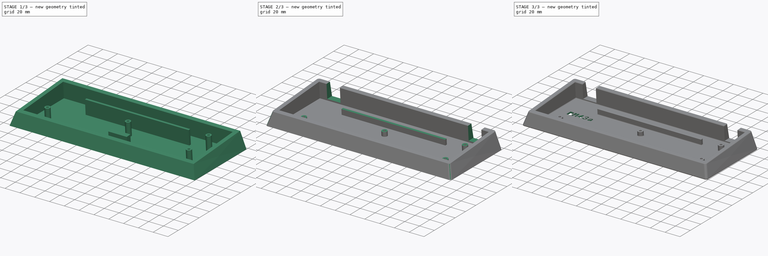
[diagram: build sequence overview — one tinted view per stage of 3, left to right]
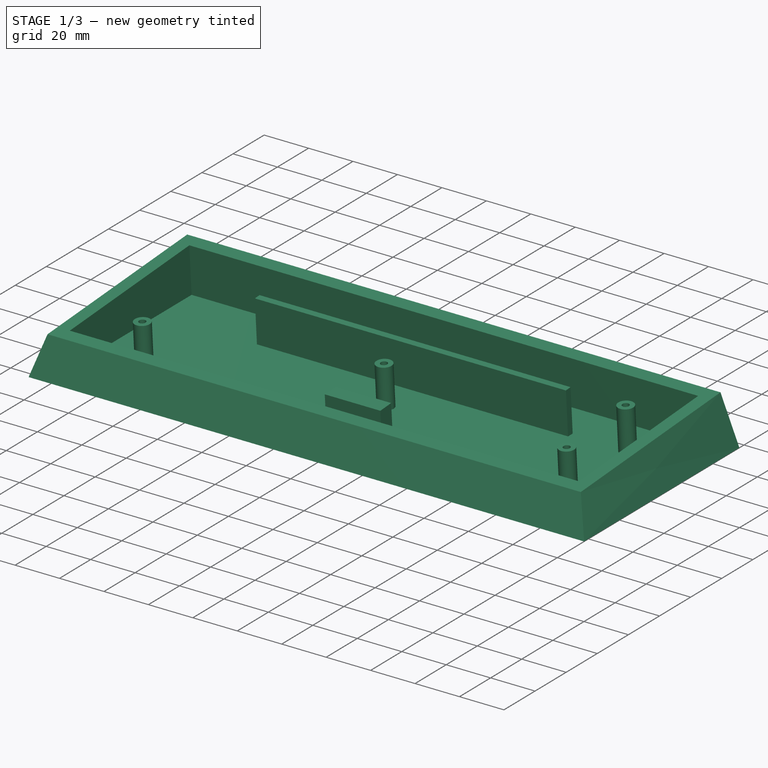
[diagram: stage 1 of 3 — iso view after this stage's code; geometry added in this stage tinted green]
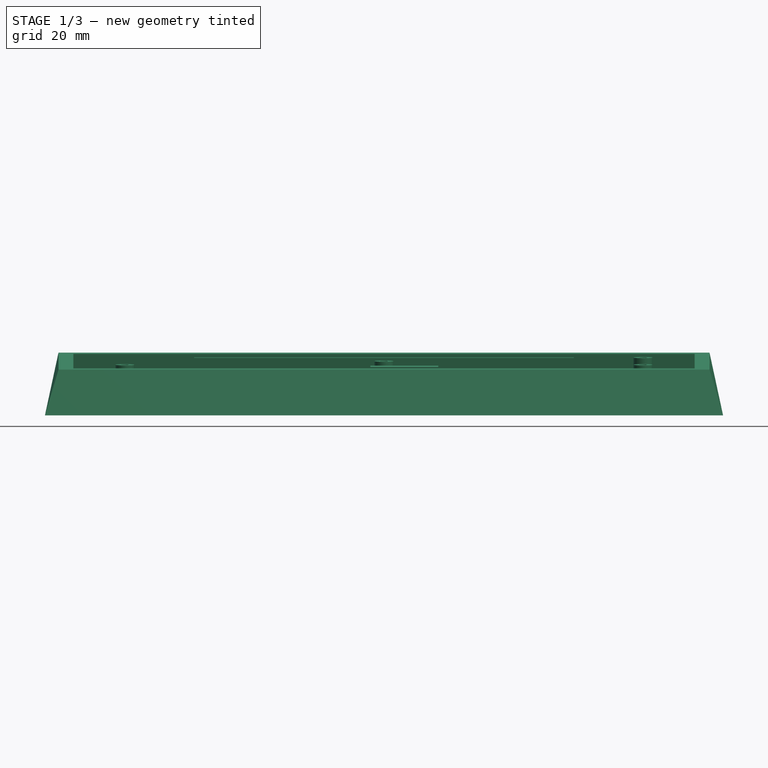
[diagram: stage 1 of 3 — front view after this stage's code; geometry added in this stage tinted green]
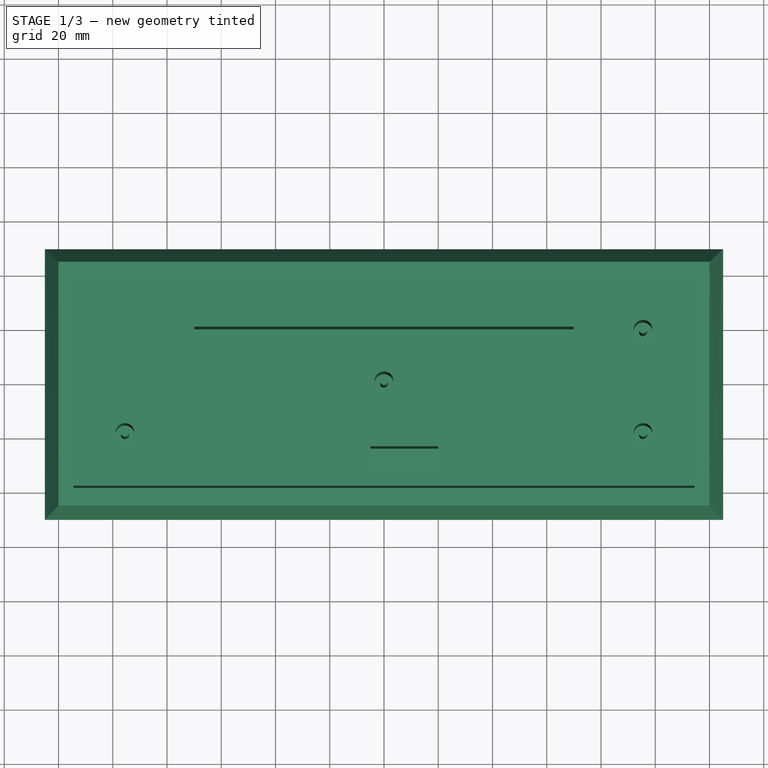
[diagram: stage 1 of 3 — top view after this stage's code; geometry added in this stage tinted green]
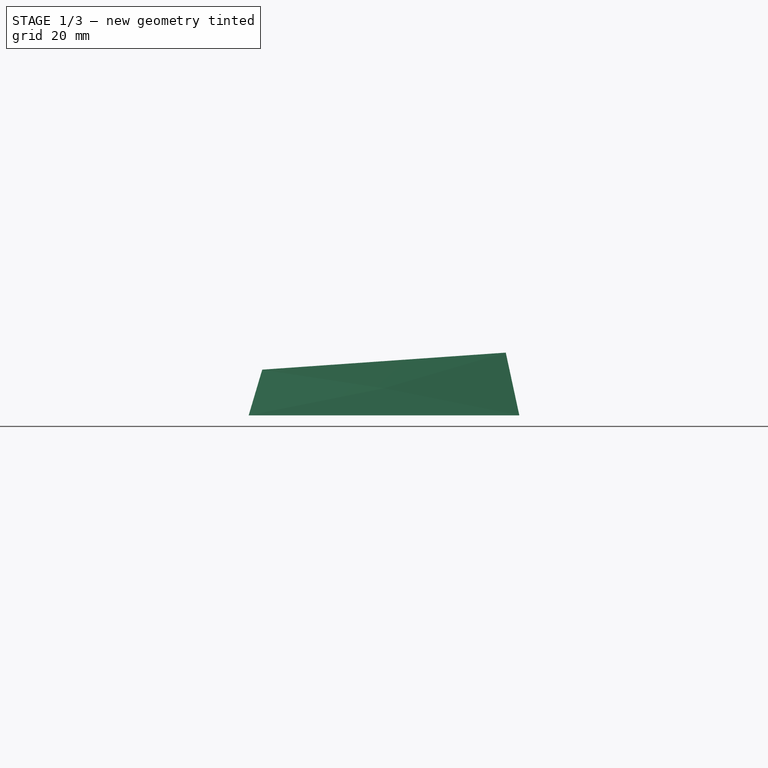
[diagram: stage 1 of 3 — right view after this stage's code; geometry added in this stage tinted green]
FCSTD DOCUMENT  (FreeCAD 0.20R)
Label: bm43a-test(2)
License: All rights reserved
LicenseURL: http://en.wikipedia.org/wiki/All_rights_reserved
objects: Sketcher::SketchObject×6, PartDesign::Pocket×4, PartDesign::Fillet×2, PartDesign::AdditiveLoft×1, PartDesign::Body×1
note: 21 computed .brp shape members not serialized (recipe doc carries the construction recipe); baked Part::Feature solids carry a one-line shape summary decoded from their .brp

FEATURE [Sketcher::SketchObject] Sketch
  FullyConstrained = true
  MapMode = 5
  Placement = pos=(0,0,20) rot=(1,0,0;0.069813rad)
  sketch-geometry (4):
    g0: LineSegment StartX=-120 StartY=45 StartZ=0 EndX=120 EndY=45 EndZ=0
    g1: LineSegment StartX=120 StartY=45 StartZ=0 EndX=120 EndY=-45 EndZ=0
    g2: LineSegment StartX=120 StartY=-45 StartZ=0 EndX=-120 EndY=-45 EndZ=0
    g3: LineSegment StartX=-120 StartY=-45 StartZ=0 EndX=-120 EndY=45 EndZ=0
  constraints (11):
    c: Coincident(g0,g1)
    c: Coincident(g1,g2)
    c: Coincident(g2,g3)
    c: Coincident(g3,g0)
    c: Horizontal(g0)
    c: Horizontal(g2)
    c: Vertical(g1)
    c: Vertical(g3)
    c: Symmetric(g0,g1,g-1)
    c: DistanceX(g0,g0) = 240
    c: DistanceY(g1,g1) = 90
FEATURE [Sketcher::SketchObject] Sketch001
  ExternalGeometry = -> [Sketch]
  FullyConstrained = true
  MapMode = 5
  Support = -> [XY_Plane]
  sketch-geometry (4):
    g0: LineSegment StartX=-125 StartY=49.8904 StartZ=0 EndX=125 EndY=49.8904 EndZ=0
    g1: LineSegment StartX=125 StartY=49.8904 StartZ=0 EndX=125 EndY=-49.8904 EndZ=0
    g2: LineSegment StartX=125 StartY=-49.8904 StartZ=0 EndX=-125 EndY=-49.8904 EndZ=0
    g3: LineSegment StartX=-125 StartY=-49.8904 StartZ=0 EndX=-125 EndY=49.8904 EndZ=0
  constraints (11):
    c: Coincident(g0,g1)
    c: Coincident(g1,g2)
    c: Coincident(g2,g3)
    c: Coincident(g3,g0)
    c: Horizontal(g0)
    c: Horizontal(g2)
    c: Vertical(g1)
    c: Vertical(g3)
    c: Symmetric(g0,g2,g-1)
    c: DistanceY(g-4,g0) = 5
    c: DistanceX(g-4,g0) = 5
FEATURE [PartDesign::AdditiveLoft] AdditiveLoft
  Closed = true
  Profile = -> Sketch001
  Ruled = true
  Sections = -> [Sketch]
FEATURE [Sketcher::SketchObject] Sketch002
  ExternalGeometry = -> [AdditiveLoft]
  FullyConstrained = true
  MapMode = 5
  Placement = pos=(0,-1.39173,19.9027) rot=(1,0,0;0.069813rad)
  Support = -> [AdditiveLoft]
  sketch-geometry (31):
    g0: LineSegment StartX=-120 StartY=46.3951 StartZ=0 EndX=120 EndY=-43.6049 EndZ=0
    g1: LineSegment StartX=120 StartY=46.3951 StartZ=0 EndX=-120 EndY=-43.6049 EndZ=0
    g2: GeomPoint X=-4.4e-15 Y=1.39513 Z=0
    g3: LineSegment StartX=-114.5 StartY=39.8951 StartZ=0 EndX=114.5 EndY=39.8951 EndZ=0
    g4: LineSegment StartX=114.5 StartY=39.8951 StartZ=0 EndX=114.5 EndY=-37.1049 EndZ=0
    g5: LineSegment StartX=114.5 StartY=-37.1049 StartZ=0 EndX=-114.5 EndY=-37.1049 EndZ=0
    g6: LineSegment StartX=-114.5 StartY=-37.1049 StartZ=0 EndX=-114.5 EndY=39.8951 EndZ=0
    g7: LineSegment StartX=-95.5 StartY=1.39513 StartZ=0 EndX=95.5 EndY=1.39513 EndZ=0
    g8: LineSegment StartX=-95.5 StartY=39.8951 StartZ=0 EndX=-95.5 EndY=-37.1049 EndZ=0
    g9: LineSegment StartX=95.5 StartY=39.8951 StartZ=0 EndX=95.5 EndY=-37.1049 EndZ=0
    g10: GeomPoint X=-95.5 Y=-17.6049 Z=0
    g11: GeomPoint X=95.5 Y=-17.6049 Z=0
    g12: GeomPoint X=95.5 Y=20.3951 Z=0
    g13: Circle CenterX=-4.4e-15 CenterY=1.39513 CenterZ=0 NormalX=0 NormalY=0 NormalZ=1 AngleXU=0 Radius=3.5
    g14: Circle CenterX=-95.5 CenterY=-17.6049 CenterZ=0 NormalX=0 NormalY=0 NormalZ=1 AngleXU=0 Radius=3.5
    g15: Circle CenterX=95.5 CenterY=-17.6049 CenterZ=0 NormalX=0 NormalY=0 NormalZ=1 AngleXU=0 Radius=3.5
    g16: Circle CenterX=95.5 CenterY=20.3951 CenterZ=0 NormalX=0 NormalY=0 NormalZ=1 AngleXU=0 Radius=3.5
    g17: Circle CenterX=-95.5 CenterY=-17.6049 CenterZ=0 NormalX=0 NormalY=0 NormalZ=1 AngleXU=0 Radius=1.5
    g18: Circle CenterX=-4.4e-15 CenterY=1.39513 CenterZ=0 NormalX=0 NormalY=0 NormalZ=1 AngleXU=0 Radius=1.5
    g19: Circle CenterX=95.5 CenterY=20.3951 CenterZ=0 NormalX=0 NormalY=0 NormalZ=1 AngleXU=0 Radius=1.5
    g20: Circle CenterX=95.5 CenterY=-17.6049 CenterZ=0 NormalX=0 NormalY=0 NormalZ=1 AngleXU=0 Radius=1.5
    g21: LineSegment StartX=95.5 StartY=21.3951 StartZ=0 EndX=-95.5 EndY=21.3951 EndZ=0
    g22: LineSegment StartX=-70 StartY=21.3951 StartZ=0 EndX=70 EndY=21.3951 EndZ=0
    g23: LineSegment StartX=70 StartY=21.3951 StartZ=0 EndX=70 EndY=18.3951 EndZ=0
    g24: LineSegment StartX=70 StartY=18.3951 StartZ=0 EndX=-70 EndY=18.3951 EndZ=0
    g25: LineSegment StartX=-70 StartY=18.3951 StartZ=0 EndX=-70 EndY=21.3951 EndZ=0
    g26: LineSegment StartX=-4.4e-15 StartY=39.8951 StartZ=0 EndX=-4.4e-15 EndY=-37.1049 EndZ=0
    g27: LineSegment StartX=-5 StartY=-22.6049 StartZ=0 EndX=20 EndY=-22.6049 EndZ=0
    g28: LineSegment StartX=20 StartY=-22.6049 StartZ=0 EndX=20 EndY=-29.6049 EndZ=0
    g29: LineSegment StartX=20 StartY=-29.6049 StartZ=0 EndX=-5 EndY=-29.6049 EndZ=0
    g30: LineSegment StartX=-5 StartY=-29.6049 StartZ=0 EndX=-5 EndY=-22.6049 EndZ=0
  constraints (80):
    c: Coincident(g0,g-3)
    c: Coincident(g0,g-4)
    c: Coincident(g1,g-3)
    c: Coincident(g1,g-4)
    c: PointOnObject(g2,g0)
    c: PointOnObject(g2,g1)
    c: Coincident(g3,g4)
    c: Coincident(g4,g5)
    c: Coincident(g5,g6)
    c: Coincident(g6,g3)
    c: Horizontal(g3)
    c: Horizontal(g5)
    c: Vertical(g4)
    c: Vertical(g6)
    c: Symmetric(g4,g3,g2)
    c: DistanceX(g3,g3) = 229
    c: DistanceY(g6,g6) = 77
    c: Horizontal(g7)
    c: Symmetric(g7,g7,g2)
    c: DistanceX(g7,g7) = 191
    c: PointOnObject(g8,g3)
    c: PointOnObject(g8,g5)
    c: Vertical(g8)
    c: PointOnObject(g7,g8)
    c: PointOnObject(g9,g3)
    c: PointOnObject(g9,g5)
    c: Vertical(g9)
    c: PointOnObject(g7,g9)
    c: Coincident(g13,g2)
    c: Coincident(g14,g10)
    c: Coincident(g15,g11)
    c: Coincident(g16,g12)
    c: Equal(g14,g13)
    c: Equal(g13,g16)
    c: Equal(g16,g15)
    c: Diameter(g14) = 7
    c: Coincident(g17,g14)
    c: Coincident(g18,g13)
    c: Coincident(g19,g16)
    c: Coincident(g20,g15)
    c: Equal(g17,g18)
    c: Equal(g18,g19)
    c: Equal(g19,g20)
    c: Diameter(g17) = 3
    c: PointOnObject(g21,g9)
    c: PointOnObject(g21,g8)
    c: Horizontal(g21)
    c: DistanceY(g7,g21) = 20
    c: Coincident(g22,g23)
    c: Coincident(g23,g24)
    c: Coincident(g24,g25)
    c: Coincident(g25,g22)
    c: Horizontal(g22)
    c: Horizontal(g24)
    c: Vertical(g23)
    c: Vertical(g25)
    c: PointOnObject(g22,g21)
    c: PointOnObject(g26,g3)
    c: PointOnObject(g26,g5)
    c: PointOnObject(g13,g26)
    c: Symmetric(g22,g22,g26)
    c: DistanceX(g24,g24) = 140
    c: DistanceY(g25,g25) = 3
    c: Coincident(g27,g28)
    c: Coincident(g28,g29)
    c: Coincident(g29,g30)
    c: Coincident(g30,g27)
    c: Horizontal(g27)
    c: Horizontal(g29)
    c: Vertical(g28)
    c: Vertical(g30)
    c: DistanceY(g27,g13) = 24
    c: DistanceY(g28,g28) = 7
    c: DistanceX(g27,g13) = 5
    c: DistanceX(g13,g27) = 20
    c: PointOnObject(g16,g9)
    c: PointOnObject(g14,g8)
    c: DistanceY(g14,g7) = 19
    c: DistanceY(g7,g16) = 19
    c: Symmetric(g16,g15,g7)
FEATURE [PartDesign::Pocket] Pocket
  BaseFeature = -> AdditiveLoft
  Direction = (0,0.0697565,-0.997564)
  Length = 0
  Length2 = 5
  Offset = -2
  Profile = -> Sketch002
  ReferenceAxis = -> Sketch002 [N_Axis]
  Type = 3
  UpToFace = -> AdditiveLoft [Face1]
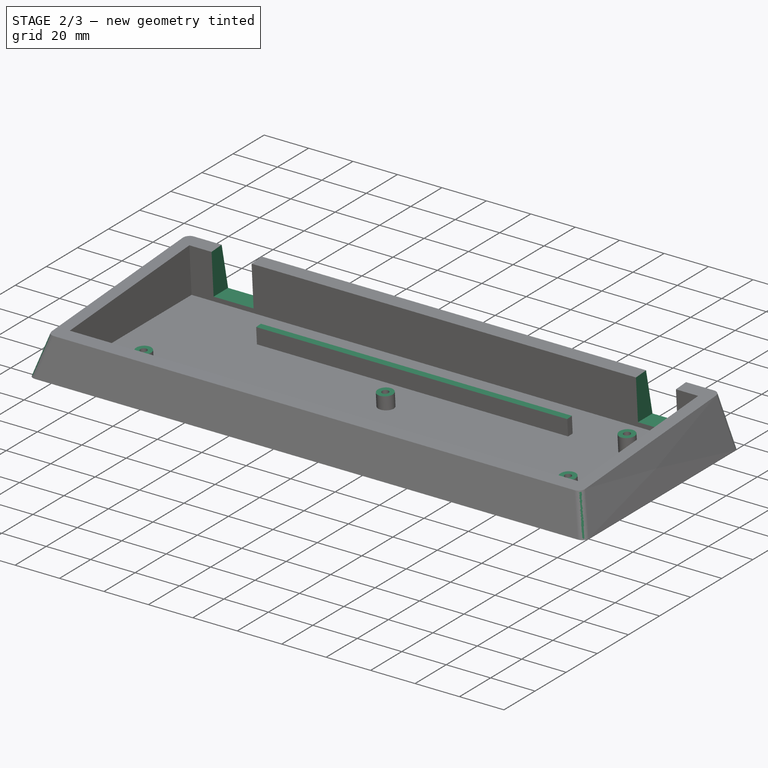
[diagram: stage 2 of 3 — iso view after this stage's code; geometry added in this stage tinted green]
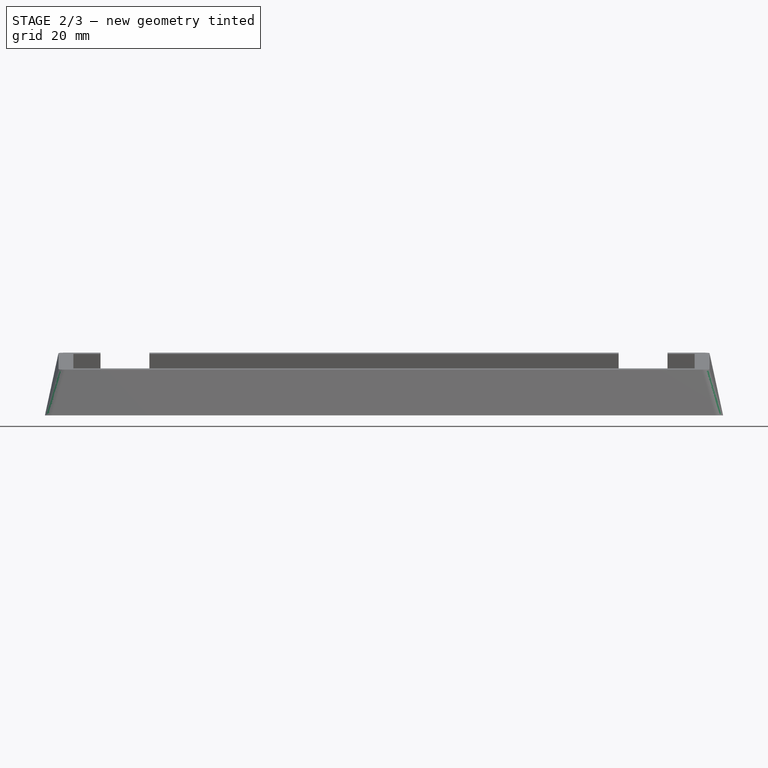
[diagram: stage 2 of 3 — front view after this stage's code; geometry added in this stage tinted green]
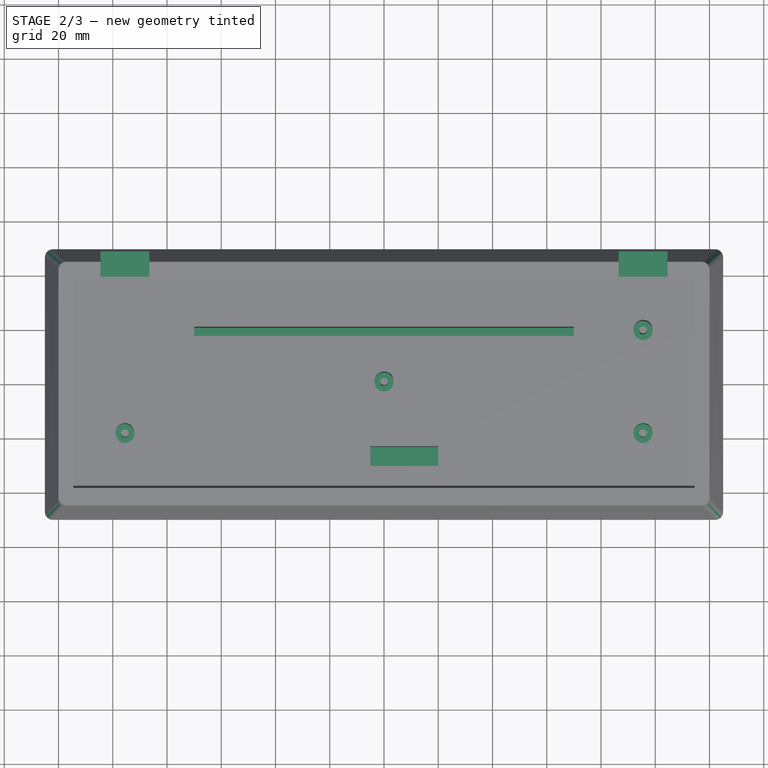
[diagram: stage 2 of 3 — top view after this stage's code; geometry added in this stage tinted green]
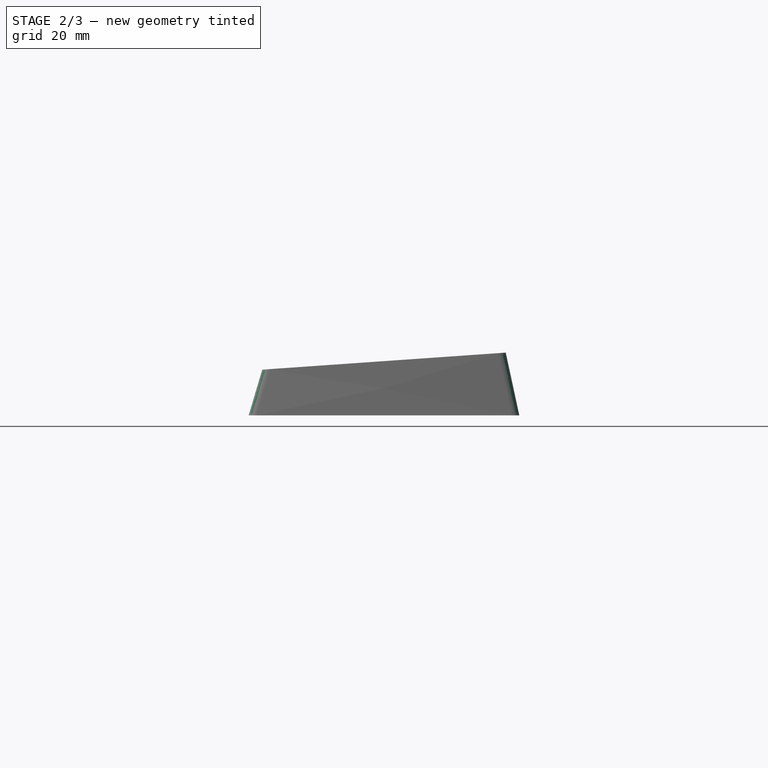
[diagram: stage 2 of 3 — right view after this stage's code; geometry added in this stage tinted green]
FEATURE [Sketcher::SketchObject] Sketch003
  ExternalGeometry = -> [Pocket]
  FullyConstrained = true
  MapMode = 5
  Placement = pos=(0,-1.39173,19.9027) rot=(1,0,0;0.069813rad)
  Support = -> [Pocket]
  sketch-geometry (4):
    g0: LineSegment StartX=-114.5 StartY=39.8951 StartZ=0 EndX=114.5 EndY=39.8951 EndZ=0
    g1: LineSegment StartX=114.5 StartY=39.8951 StartZ=0 EndX=114.5 EndY=-37.1049 EndZ=0
    g2: LineSegment StartX=114.5 StartY=-37.1049 StartZ=0 EndX=-114.5 EndY=-37.1049 EndZ=0
    g3: LineSegment StartX=-114.5 StartY=-37.1049 StartZ=0 EndX=-114.5 EndY=39.8951 EndZ=0
  constraints (10):
    c: Coincident(g0,g1)
    c: Coincident(g1,g2)
    c: Coincident(g2,g3)
    c: Coincident(g3,g0)
    c: Horizontal(g0)
    c: Horizontal(g2)
    c: Vertical(g1)
    c: Vertical(g3)
    c: Coincident(g0,g-4)
    c: Coincident(g1,g-3)
FEATURE [PartDesign::Pocket] Pocket001
  BaseFeature = -> Pocket
  Direction = (0,0.0697565,-0.997564)
  Length = 12
  Length2 = 5
  Profile = -> Sketch003
  ReferenceAxis = -> Sketch003 [N_Axis]
  Type = 0
FEATURE [Sketcher::SketchObject] Sketch004
  ExternalGeometry = -> [Pocket001]
  FullyConstrained = true
  MapMode = 5
  Placement = pos=(0,-1.39173,19.9027) rot=(1,0,0;0.069813rad)
  Support = -> [Pocket001]
  sketch-geometry (8):
    g0: LineSegment StartX=-104.5 StartY=39.8951 StartZ=0 EndX=-86.5 EndY=39.8951 EndZ=0
    g1: LineSegment StartX=-86.5 StartY=39.8951 StartZ=0 EndX=-86.5 EndY=49.7689 EndZ=0
    g2: LineSegment StartX=-86.5 StartY=49.7689 StartZ=0 EndX=-104.5 EndY=49.7689 EndZ=0
    g3: LineSegment StartX=-104.5 StartY=49.7689 StartZ=0 EndX=-104.5 EndY=39.8951 EndZ=0
    g4: LineSegment StartX=104.5 StartY=39.8951 StartZ=0 EndX=86.5 EndY=39.8951 EndZ=0
    g5: LineSegment StartX=86.5 StartY=39.8951 StartZ=0 EndX=86.5 EndY=49.7689 EndZ=0
    g6: LineSegment StartX=86.5 StartY=49.7689 StartZ=0 EndX=104.5 EndY=49.7689 EndZ=0
    g7: LineSegment StartX=104.5 StartY=49.7689 StartZ=0 EndX=104.5 EndY=39.8951 EndZ=0
  constraints (24):
    c: Coincident(g0,g1)
    c: Coincident(g1,g2)
    c: Coincident(g2,g3)
    c: Coincident(g3,g0)
    c: Horizontal(g0)
    c: Horizontal(g2)
    c: Vertical(g1)
    c: Vertical(g3)
    c: PointOnObject(g0,g-4)
    c: PointOnObject(g1,g-3)
    c: DistanceX(g-4,g0) = 10
    c: DistanceX(g-4,g0) = 28
    c: Coincident(g4,g5)
    c: Coincident(g5,g6)
    c: Coincident(g6,g7)
    c: Coincident(g7,g4)
    c: Horizontal(g4)
    c: Horizontal(g6)
    c: Vertical(g5)
    c: Vertical(g7)
    c: PointOnObject(g4,g-4)
    c: PointOnObject(g5,g-3)
    c: DistanceX(g4,g-4) = 10
    c: DistanceX(g4,g-4) = 28
FEATURE [PartDesign::Pocket] Pocket002
  BaseFeature = -> Pocket001
  Direction = (0,0.0697565,-0.997564)
  Length = 0
  Length2 = 5
  Offset = -4
  Profile = -> Sketch004
  ReferenceAxis = -> Sketch004 [N_Axis]
  Type = 3
  UpToFace = -> Pocket001 [Face1]
FEATURE [PartDesign::Fillet] Fillet
  Base = -> Pocket002 [Edge18,Edge16,Edge15,Edge5]
  BaseFeature = -> Pocket002
  Radius = 3
  SupportTransform = false
  UseAllEdges = false
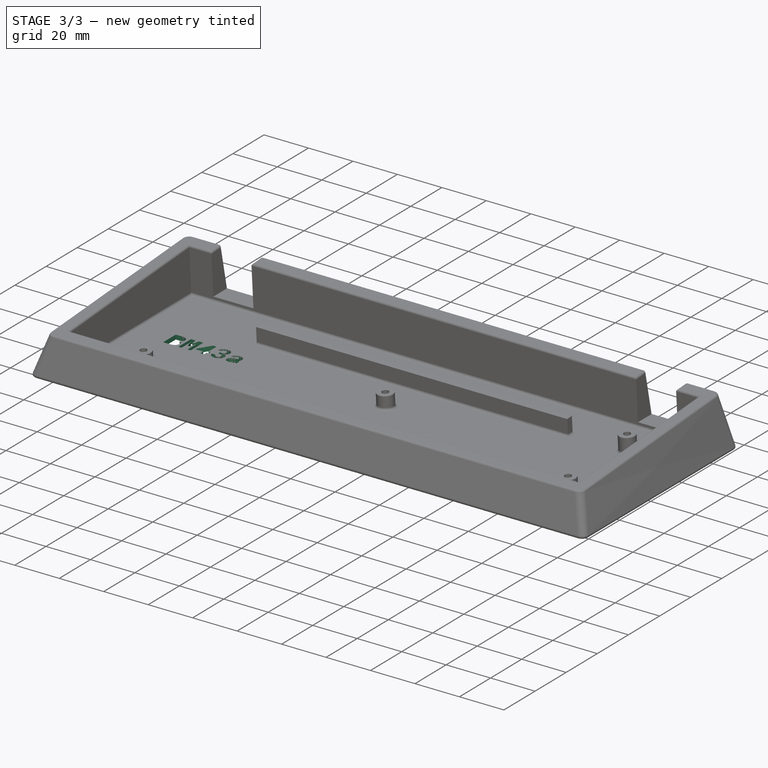
[diagram: stage 3 of 3 — iso view after this stage's code; geometry added in this stage tinted green]
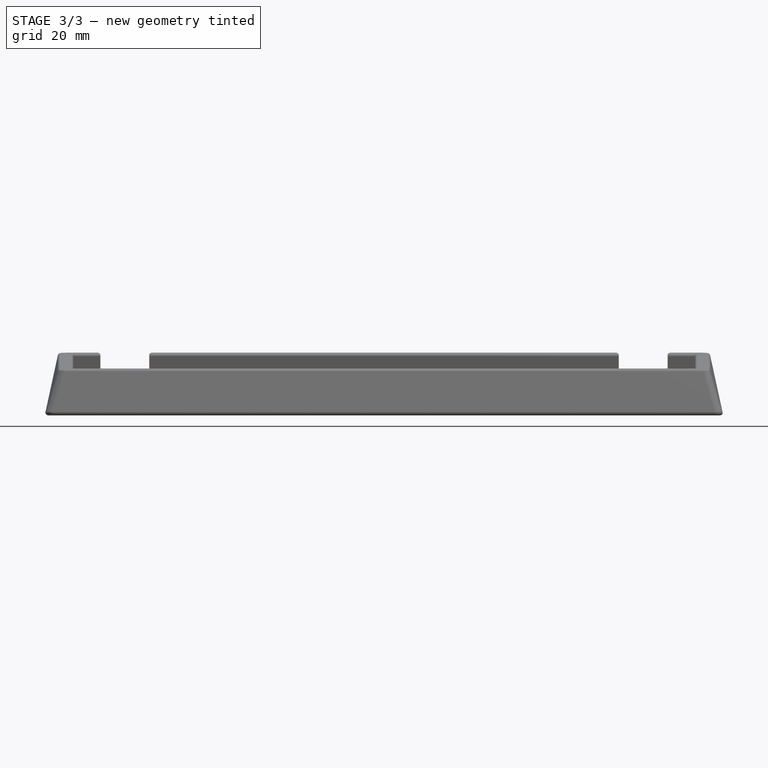
[diagram: stage 3 of 3 — front view after this stage's code; geometry added in this stage tinted green]
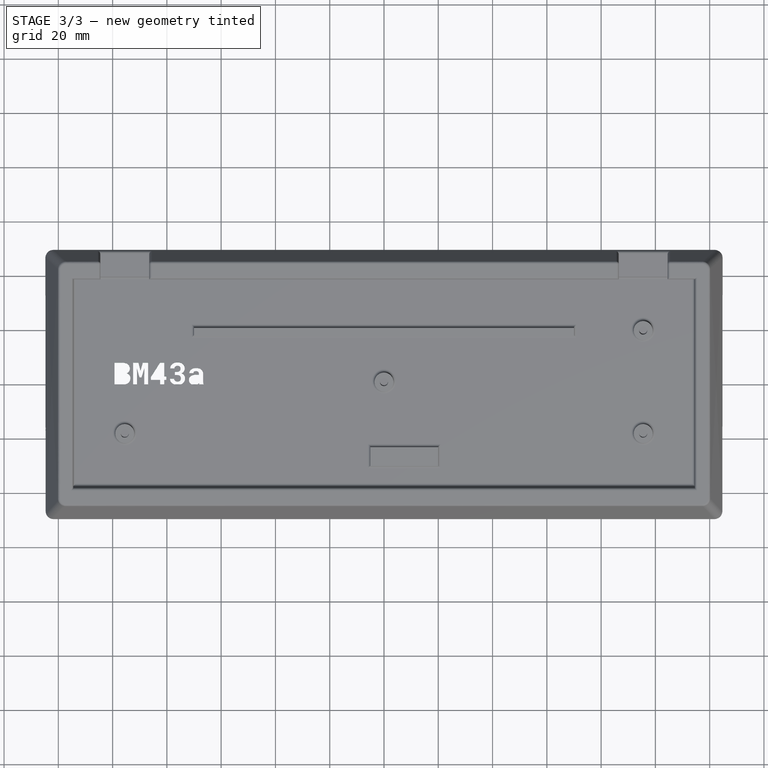
[diagram: stage 3 of 3 — top view after this stage's code; geometry added in this stage tinted green]
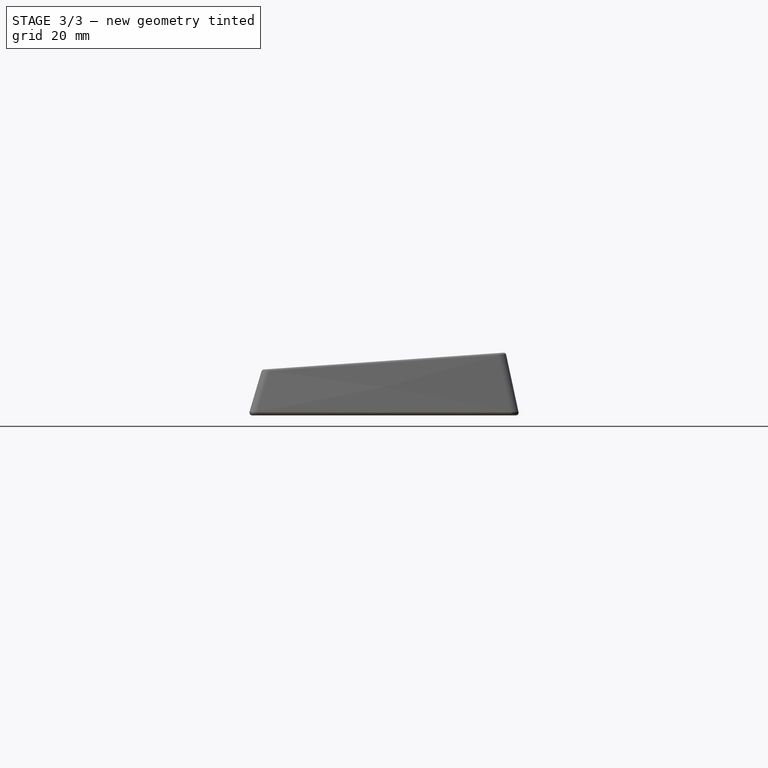
[diagram: stage 3 of 3 — right view after this stage's code; geometry added in this stage tinted green]
FEATURE [PartDesign::Fillet] Fillet001
  Base = -> Fillet [Face1,Face10,Face14,Face28,Edge18,Edge17,Edge14,Edge11,Edge12,Edge19]
  BaseFeature = -> Fillet
  Radius = 1
  SupportTransform = false
  UseAllEdges = false
FEATURE [Sketcher::SketchObject] Sketch005
  FullyConstrained = false
  Placement = pos=(-100,0,2) rot=(0,0,1;0rad)
  Support = -> [Fillet001]
  sketch-geometry (137):
    g0: LineSegment StartX=0.718252 StartY=0 StartZ=0 EndX=3.66531 EndY=0 EndZ=0
    g1: BSplineCurve PolesCount=3 KnotsCount=2 Degree=2 IsPeriodic=0
    g2: BSplineCurve PolesCount=3 KnotsCount=2 Degree=2 IsPeriodic=0
    g3: BSplineCurve PolesCount=3 KnotsCount=2 Degree=2 IsPeriodic=0
    g4: BSplineCurve PolesCount=3 KnotsCount=2 Degree=2 IsPeriodic=0
    g5: BSplineCurve PolesCount=3 KnotsCount=2 Degree=2 IsPeriodic=0
    g6: BSplineCurve PolesCount=3 KnotsCount=2 Degree=2 IsPeriodic=0
    g7: BSplineCurve PolesCount=3 KnotsCount=2 Degree=2 IsPeriodic=0
    g8: BSplineCurve PolesCount=3 KnotsCount=2 Degree=2 IsPeriodic=0
    g9: LineSegment StartX=5.18327 StartY=4.17623 StartZ=0 EndX=5.18327 EndY=4.18364 EndZ=0
    g10: BSplineCurve PolesCount=3 KnotsCount=2 Degree=2 IsPeriodic=0
    g11: BSplineCurve PolesCount=3 KnotsCount=2 Degree=2 IsPeriodic=0
    g12: BSplineCurve PolesCount=3 KnotsCount=2 Degree=2 IsPeriodic=0
    g13: BSplineCurve PolesCount=3 KnotsCount=2 Degree=2 IsPeriodic=0
    g14: BSplineCurve PolesCount=3 KnotsCount=2 Degree=2 IsPeriodic=0
    g15: BSplineCurve PolesCount=3 KnotsCount=2 Degree=2 IsPeriodic=0
    g16: BSplineCurve PolesCount=3 KnotsCount=2 Degree=2 IsPeriodic=0
    g17: BSplineCurve PolesCount=3 KnotsCount=2 Degree=2 IsPeriodic=0
    g18: LineSegment StartX=3.43206 StartY=8.08589 StartZ=0 EndX=0.718252 EndY=8.08589 EndZ=0
    g19: LineSegment StartX=0.718252 StartY=8.08589 StartZ=0 EndX=0.718252 EndY=0 EndZ=0
    g20: LineSegment StartX=9.51499 StartY=8.08589 StartZ=0 EndX=7.57867 EndY=8.08589 EndZ=0
    g21: LineSegment StartX=7.57867 StartY=8.08589 StartZ=0 EndX=7.57867 EndY=0 EndZ=0
    g22: LineSegment StartX=7.57867 StartY=0 StartZ=0 EndX=9.01148 EndY=0 EndZ=0
    g23: LineSegment StartX=9.01148 StartY=0 StartZ=0 EndX=9.01148 EndY=2.39541 EndZ=0
    g24: LineSegment StartX=9.01148 StartY=2.39541 StartZ=0 EndX=8.94484 EndY=6.0274 EndZ=0
    g25: LineSegment StartX=8.94484 StartY=6.0274 StartZ=0 EndX=9.89263 EndY=2.66568 EndZ=0
    g26: LineSegment StartX=9.89263 StartY=2.66568 StartZ=0 EndX=10.6664 EndY=2.66568 EndZ=0
    g27: LineSegment StartX=10.6664 StartY=2.66568 StartZ=0 EndX=11.7253 EndY=6.17549 EndZ=0
    g28: LineSegment StartX=11.7253 StartY=6.17549 StartZ=0 EndX=11.6586 EndY=2.39541 EndZ=0
    g29: LineSegment StartX=11.6586 StartY=2.39541 StartZ=0 EndX=11.6586 EndY=0 EndZ=0
    g30: LineSegment StartX=11.6586 StartY=0 StartZ=0 EndX=13.0914 EndY=0 EndZ=0
    g31: LineSegment StartX=13.0914 StartY=0 StartZ=0 EndX=13.0914 EndY=8.08589 EndZ=0
    g32: LineSegment StartX=13.0914 StartY=8.08589 StartZ=0 EndX=11.1551 EndY=8.08589 EndZ=0
    g33: LineSegment StartX=11.1551 StartY=8.08589 StartZ=0 EndX=10.2814 EndY=5.04998 EndZ=0
    g34: LineSegment StartX=10.2814 StartY=5.04998 StartZ=0 EndX=9.51499 EndY=8.08589 EndZ=0
    g35: LineSegment StartX=19.0374 StartY=3.00629 StartZ=0 EndX=19.0374 EndY=8.08589 EndZ=0
    g36: LineSegment StartX=19.0374 StartY=8.08589 StartZ=0 EndX=17.4713 EndY=8.08589 EndZ=0
    g37: LineSegment StartX=17.4713 StartY=8.08589 StartZ=0 EndX=14.0726 EndY=2.72121 EndZ=0
    g38: LineSegment StartX=14.0726 StartY=2.72121 StartZ=0 EndX=14.1318 EndY=1.75491 EndZ=0
    g39: LineSegment StartX=14.1318 StartY=1.75491 StartZ=0 EndX=17.4935 EndY=1.75491 EndZ=0
    g40: LineSegment StartX=17.4935 StartY=1.75491 StartZ=0 EndX=17.4935 EndY=0 EndZ=0
    g41: LineSegment StartX=17.4935 StartY=0 StartZ=0 EndX=19.0374 EndY=0 EndZ=0
    g42: LineSegment StartX=19.0374 StartY=0 StartZ=0 EndX=19.0374 EndY=1.75491 EndZ=0
    g43: LineSegment StartX=19.0374 StartY=1.75491 StartZ=0 EndX=19.9741 EndY=1.75491 EndZ=0
    g44: LineSegment StartX=19.9741 StartY=1.75491 StartZ=0 EndX=19.9741 EndY=3.00629 EndZ=0
    g45: LineSegment StartX=19.9741 StartY=3.00629 StartZ=0 EndX=19.0374 EndY=3.00629 EndZ=0
    g46: LineSegment StartX=22.9545 StartY=4.72047 StartZ=0 EndX=22.9545 EndY=3.52092 EndZ=0
    g47: LineSegment StartX=22.9545 StartY=3.52092 StartZ=0 EndX=23.7912 EndY=3.52092 EndZ=0
    g48: BSplineCurve PolesCount=3 KnotsCount=2 Degree=2 IsPeriodic=0
    g49: BSplineCurve PolesCount=3 KnotsCount=2 Degree=2 IsPeriodic=0
    g50: BSplineCurve PolesCount=3 KnotsCount=2 Degree=2 IsPeriodic=0
    g51: BSplineCurve PolesCount=3 KnotsCount=2 Degree=2 IsPeriodic=0
    g52: BSplineCurve PolesCount=3 KnotsCount=2 Degree=2 IsPeriodic=0
    g53: BSplineCurve PolesCount=3 KnotsCount=2 Degree=2 IsPeriodic=0
    g54: BSplineCurve PolesCount=3 KnotsCount=2 Degree=2 IsPeriodic=0
    g55: BSplineCurve PolesCount=3 KnotsCount=2 Degree=2 IsPeriodic=0
    g56: BSplineCurve PolesCount=3 KnotsCount=2 Degree=2 IsPeriodic=0
    g57: BSplineCurve PolesCount=3 KnotsCount=2 Degree=2 IsPeriodic=0
    g58: BSplineCurve PolesCount=3 KnotsCount=2 Degree=2 IsPeriodic=0
    g59: BSplineCurve PolesCount=3 KnotsCount=2 Degree=2 IsPeriodic=0
    g60: LineSegment StartX=22.6916 StartY=2.19919 StartZ=0 EndX=21.1477 EndY=2.19919 EndZ=0
    g61: BSplineCurve PolesCount=3 KnotsCount=2 Degree=2 IsPeriodic=0
    g62: BSplineCurve PolesCount=3 KnotsCount=2 Degree=2 IsPeriodic=0
    g63: BSplineCurve PolesCount=3 KnotsCount=2 Degree=2 IsPeriodic=0
    g64: BSplineCurve PolesCount=3 KnotsCount=2 Degree=2 IsPeriodic=0
    g65: BSplineCurve PolesCount=3 KnotsCount=2 Degree=2 IsPeriodic=0
    g66: BSplineCurve PolesCount=3 KnotsCount=2 Degree=2 IsPeriodic=0
    g67: BSplineCurve PolesCount=3 KnotsCount=2 Degree=2 IsPeriodic=0
    g68: BSplineCurve PolesCount=3 KnotsCount=2 Degree=2 IsPeriodic=0
    g69: BSplineCurve PolesCount=3 KnotsCount=2 Degree=2 IsPeriodic=0
    g70: BSplineCurve PolesCount=3 KnotsCount=2 Degree=2 IsPeriodic=0
    g71: BSplineCurve PolesCount=3 KnotsCount=2 Degree=2 IsPeriodic=0
    g72: BSplineCurve PolesCount=3 KnotsCount=2 Degree=2 IsPeriodic=0
    g73: BSplineCurve PolesCount=3 KnotsCount=2 Degree=2 IsPeriodic=0
    g74: BSplineCurve PolesCount=3 KnotsCount=2 Degree=2 IsPeriodic=0
    g75: BSplineCurve PolesCount=3 KnotsCount=2 Degree=2 IsPeriodic=0
    g76: BSplineCurve PolesCount=3 KnotsCount=2 Degree=2 IsPeriodic=0
    g77: BSplineCurve PolesCount=3 KnotsCount=2 Degree=2 IsPeriodic=0
    g78: BSplineCurve PolesCount=3 KnotsCount=2 Degree=2 IsPeriodic=0
    g79: BSplineCurve PolesCount=3 KnotsCount=2 Degree=2 IsPeriodic=0
    g80: BSplineCurve PolesCount=3 KnotsCount=2 Degree=2 IsPeriodic=0
    g81: BSplineCurve PolesCount=3 KnotsCount=2 Degree=2 IsPeriodic=0
    g82: BSplineCurve PolesCount=3 KnotsCount=2 Degree=2 IsPeriodic=0
    g83: BSplineCurve PolesCount=3 KnotsCount=2 Degree=2 IsPeriodic=0
    g84: BSplineCurve PolesCount=3 KnotsCount=2 Degree=2 IsPeriodic=0
    g85: LineSegment StartX=21.244 StartY=5.98667 StartZ=0 EndX=22.7879 EndY=5.98667 EndZ=0
    g86: BSplineCurve PolesCount=3 KnotsCount=2 Degree=2 IsPeriodic=0
    g87: BSplineCurve PolesCount=3 KnotsCount=2 Degree=2 IsPeriodic=0
    g88: BSplineCurve PolesCount=3 KnotsCount=2 Degree=2 IsPeriodic=0
    g89: BSplineCurve PolesCount=3 KnotsCount=2 Degree=2 IsPeriodic=0
    g90: BSplineCurve PolesCount=3 KnotsCount=2 Degree=2 IsPeriodic=0
    g91: BSplineCurve PolesCount=3 KnotsCount=2 Degree=2 IsPeriodic=0
    g92: BSplineCurve PolesCount=3 KnotsCount=2 Degree=2 IsPeriodic=0
    g93: BSplineCurve PolesCount=3 KnotsCount=2 Degree=2 IsPeriodic=0
    g94: BSplineCurve PolesCount=3 KnotsCount=2 Degree=2 IsPeriodic=0
    g95: BSplineCurve PolesCount=3 KnotsCount=2 Degree=2 IsPeriodic=0
    g96: BSplineCurve PolesCount=3 KnotsCount=2 Degree=2 IsPeriodic=0
    g97: BSplineCurve PolesCount=3 KnotsCount=2 Degree=2 IsPeriodic=0
    g98: LineSegment StartX=23.7912 StartY=4.72047 StartZ=0 EndX=22.9545 EndY=4.72047 EndZ=0
    g99: LineSegment StartX=32.0252 StartY=0 StartZ=0 EndX=33.5913 EndY=0 EndZ=0
    g100: LineSegment StartX=33.5913 StartY=0 StartZ=0 EndX=33.5913 EndY=0.0962606 EndZ=0
    g101: BSplineCurve PolesCount=3 KnotsCount=2 Degree=2 IsPeriodic=0
    g102: BSplineCurve PolesCount=3 KnotsCount=2 Degree=2 IsPeriodic=0
    g103: LineSegment StartX=33.3506 StartY=1.44021 StartZ=0 EndX=33.3506 EndY=4.01703 EndZ=0
    g104: BSplineCurve PolesCount=3 KnotsCount=2 Degree=2 IsPeriodic=0
    g105: BSplineCurve PolesCount=3 KnotsCount=2 Degree=2 IsPeriodic=0
    g106: BSplineCurve PolesCount=3 KnotsCount=2 Degree=2 IsPeriodic=0
    g107: BSplineCurve PolesCount=3 KnotsCount=2 Degree=2 IsPeriodic=0
    g108: BSplineCurve PolesCount=3 KnotsCount=2 Degree=2 IsPeriodic=0
    g109: BSplineCurve PolesCount=3 KnotsCount=2 Degree=2 IsPeriodic=0
    g110: BSplineCurve PolesCount=3 KnotsCount=2 Degree=2 IsPeriodic=0
    g111: BSplineCurve PolesCount=3 KnotsCount=2 Degree=2 IsPeriodic=0
    g112: LineSegment StartX=28.2599 StartY=4.22066 StartZ=0 EndX=29.8038 EndY=4.22066 EndZ=0
    g113: BSplineCurve PolesCount=3 KnotsCount=2 Degree=2 IsPeriodic=0
    g114: BSplineCurve PolesCount=3 KnotsCount=2 Degree=2 IsPeriodic=0
    g115: BSplineCurve PolesCount=3 KnotsCount=2 Degree=2 IsPeriodic=0
    g116: BSplineCurve PolesCount=3 KnotsCount=2 Degree=2 IsPeriodic=0
    g117: BSplineCurve PolesCount=3 KnotsCount=2 Degree=2 IsPeriodic=0
    g118: BSplineCurve PolesCount=3 KnotsCount=2 Degree=2 IsPeriodic=0
    g119: BSplineCurve PolesCount=3 KnotsCount=2 Degree=2 IsPeriodic=0
    g120: BSplineCurve PolesCount=3 KnotsCount=2 Degree=2 IsPeriodic=0
    g121: LineSegment StartX=31.8067 StartY=4.02814 StartZ=0 EndX=31.8067 EndY=3.67271 EndZ=0
    g122: LineSegment StartX=31.8067 StartY=3.67271 StartZ=0 EndX=30.9478 EndY=3.67271 EndZ=0
    g123: BSplineCurve PolesCount=3 KnotsCount=2 Degree=2 IsPeriodic=0
    g124: BSplineCurve PolesCount=3 KnotsCount=2 Degree=2 IsPeriodic=0
    g125: BSplineCurve PolesCount=3 KnotsCount=2 Degree=2 IsPeriodic=0
    g126: BSplineCurve PolesCount=3 KnotsCount=2 Degree=2 IsPeriodic=0
    g127: BSplineCurve PolesCount=3 KnotsCount=2 Degree=2 IsPeriodic=0
    g128: BSplineCurve PolesCount=3 KnotsCount=2 Degree=2 IsPeriodic=0
    g129: BSplineCurve PolesCount=3 KnotsCount=2 Degree=2 IsPeriodic=0
    g130: BSplineCurve PolesCount=3 KnotsCount=2 Degree=2 IsPeriodic=0
    g131: BSplineCurve PolesCount=3 KnotsCount=2 Degree=2 IsPeriodic=0
    g132: BSplineCurve PolesCount=3 KnotsCount=2 Degree=2 IsPeriodic=0
    g133: BSplineCurve PolesCount=3 KnotsCount=2 Degree=2 IsPeriodic=0
    g134: BSplineCurve PolesCount=3 KnotsCount=2 Degree=2 IsPeriodic=0
    g135: BSplineCurve PolesCount=3 KnotsCount=2 Degree=2 IsPeriodic=0
    g136: BSplineCurve PolesCount=3 KnotsCount=2 Degree=2 IsPeriodic=0
  constraints (170):
    c: Horizontal(g0)
    c: Coincident(g0,g1)
    c: Coincident(g1,g2)
    c: Coincident(g2,g3)
    c: Coincident(g3,g4)
    c: Coincident(g4,g5)
    c: Coincident(g5,g6)
    c: Coincident(g6,g7)
    c: Coincident(g7,g8)
    c: Coincident(g8,g9)
    c: Vertical(g9)
    c: Coincident(g9,g10)
    c: Coincident(g10,g11)
    c: Coincident(g11,g12)
    c: Coincident(g12,g13)
    c: Coincident(g13,g14)
    c: Coincident(g14,g15)
    c: Coincident(g15,g16)
    c: Coincident(g16,g17)
    c: Coincident(g17,g18)
    c: Horizontal(g18)
    c: Coincident(g18,g19)
    c: Vertical(g19)
    c: Coincident(g19,g0)
    c: Horizontal(g20)
    c: Coincident(g20,g21)
    c: Vertical(g21)
    c: Coincident(g21,g22)
    c: Horizontal(g22)
    c: Coincident(g22,g23)
    c: Vertical(g23)
    c: Coincident(g23,g24)
    c: Coincident(g24,g25)
    c: Coincident(g25,g26)
    c: Horizontal(g26)
    c: Coincident(g26,g27)
    c: Coincident(g27,g28)
    c: Coincident(g28,g29)
    c: Vertical(g29)
    c: Coincident(g29,g30)
    c: Horizontal(g30)
    c: Coincident(g30,g31)
    c: Vertical(g31)
    c: Coincident(g31,g32)
    c: Horizontal(g32)
    c: Coincident(g32,g33)
    c: Coincident(g33,g34)
    c: Coincident(g34,g20)
    c: Vertical(g35)
    c: Coincident(g35,g36)
    c: Horizontal(g36)
    c: Coincident(g36,g37)
    c: Coincident(g37,g38)
    c: Coincident(g38,g39)
    c: Horizontal(g39)
    c: Coincident(g39,g40)
    c: Vertical(g40)
    c: Coincident(g40,g41)
    c: Horizontal(g41)
    c: Coincident(g41,g42)
    c: Vertical(g42)
    c: Coincident(g42,g43)
    c: Horizontal(g43)
    c: Coincident(g43,g44)
    c: Vertical(g44)
    c: Coincident(g44,g45)
    c: Horizontal(g45)
    c: Coincident(g45,g35)
    c: Vertical(g46)
    c: Coincident(g46,g47)
    c: Horizontal(g47)
    c: Coincident(g47,g48)
    c: Coincident(g48,g49)
    c: Coincident(g49,g50)
    c: Coincident(g50,g51)
    c: Coincident(g51,g52)
    c: Coincident(g52,g53)
    c: Coincident(g53,g54)
    c: Coincident(g54,g55)
    c: Coincident(g55,g56)
    c: Coincident(g56,g57)
    c: Coincident(g57,g58)
    c: Coincident(g58,g59)
    c: Coincident(g59,g60)
    c: Horizontal(g60)
    c: Coincident(g60,g61)
    c: Coincident(g61,g62)
    c: Coincident(g62,g63)
    c: Coincident(g63,g64)
    c: Coincident(g64,g65)
    c: Coincident(g65,g66)
    c: Coincident(g66,g67)
    c: Coincident(g67,g68)
    c: Coincident(g68,g69)
    c: Coincident(g69,g70)
    c: Coincident(g70,g71)
    c: Coincident(g71,g72)
    c: Coincident(g72,g73)
    c: Coincident(g73,g74)
    c: Coincident(g74,g75)
    c: Coincident(g75,g76)
    c: Coincident(g76,g77)
    c: Coincident(g77,g78)
    c: Coincident(g78,g79)
    c: Coincident(g79,g80)
    c: Coincident(g80,g81)
    c: Coincident(g81,g82)
    c: Coincident(g82,g83)
    c: Coincident(g83,g84)
    c: Coincident(g84,g85)
    c: Horizontal(g85)
    c: Coincident(g85,g86)
    c: Coincident(g86,g87)
    c: Coincident(g87,g88)
    c: Coincident(g88,g89)
    c: Coincident(g89,g90)
    c: Coincident(g90,g91)
    c: Coincident(g91,g92)
    c: Coincident(g92,g93)
    c: Coincident(g93,g94)
    c: Coincident(g94,g95)
    c: Coincident(g95,g96)
    c: Coincident(g96,g97)
    c: Coincident(g97,g98)
    c: Horizontal(g98)
    c: Coincident(g98,g46)
    c: Horizontal(g99)
    c: Coincident(g99,g100)
    c: Vertical(g100)
    c: Coincident(g100,g101)
    c: Coincident(g101,g102)
    c: Coincident(g102,g103)
    c: Vertical(g103)
    c: Coincident(g103,g104)
    c: Coincident(g104,g105)
    c: Coincident(g105,g106)
    c: Coincident(g106,g107)
    c: Coincident(g107,g108)
    c: Coincident(g108,g109)
    c: Coincident(g109,g110)
    c: Coincident(g110,g111)
    c: Coincident(g111,g112)
    c: Horizontal(g112)
    c: Coincident(g112,g113)
    c: Coincident(g113,g114)
    c: Coincident(g114,g115)
    c: Coincident(g115,g116)
    c: Coincident(g116,g117)
    c: Coincident(g117,g118)
    c: Coincident(g118,g119)
    c: Coincident(g119,g120)
    c: Coincident(g120,g121)
    c: Vertical(g121)
    c: Coincident(g121,g122)
    c: Horizontal(g122)
    c: Coincident(g122,g123)
    c: Coincident(g123,g124)
    c: Coincident(g124,g125)
    c: Coincident(g125,g126)
    c: Coincident(g126,g127)
    c: Coincident(g127,g128)
    c: Coincident(g128,g129)
    c: Coincident(g129,g130)
    c: Coincident(g130,g131)
    c: Coincident(g131,g132)
    c: Coincident(g132,g133)
    c: Coincident(g133,g134)
    c: Coincident(g134,g135)
    c: Coincident(g135,g136)
    c: Coincident(g136,g99)
FEATURE [PartDesign::Pocket] Pocket003
  BaseFeature = -> Fillet001
  Direction = (0,0,-1)
  Length = 1
  Length2 = 5
  Profile = -> Sketch005
  ReferenceAxis = -> Sketch005 [N_Axis]
  Type = 1
FEATURE [PartDesign::Body] Body
  Group = -> [Sketch,Sketch001,AdditiveLoft,Sketch002,Pocket,Sketch003,Pocket001,Sketch004,Pocket002,Fillet,Fillet001,Sketch005,Pocket003]
  Origin = -> Origin
  Tip = -> Pocket003
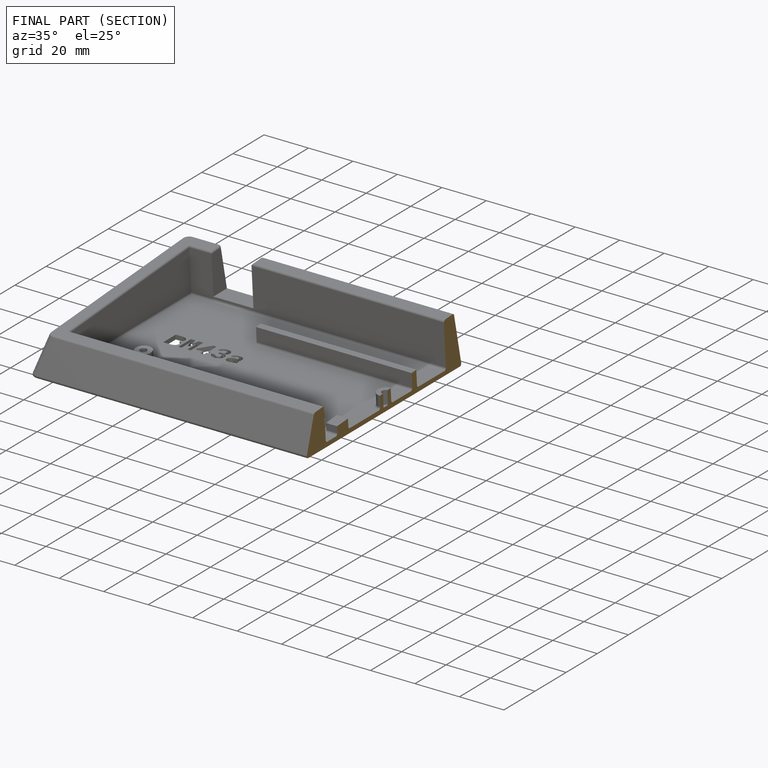
[diagram: finished part — half-section view (interior)]
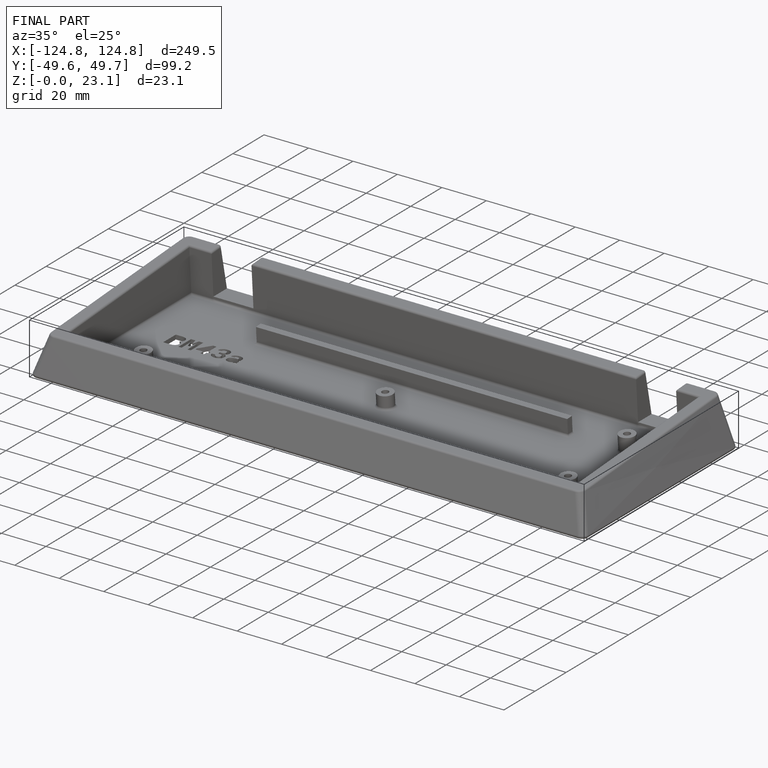
[diagram: finished part — iso view with bounding-box wireframe]
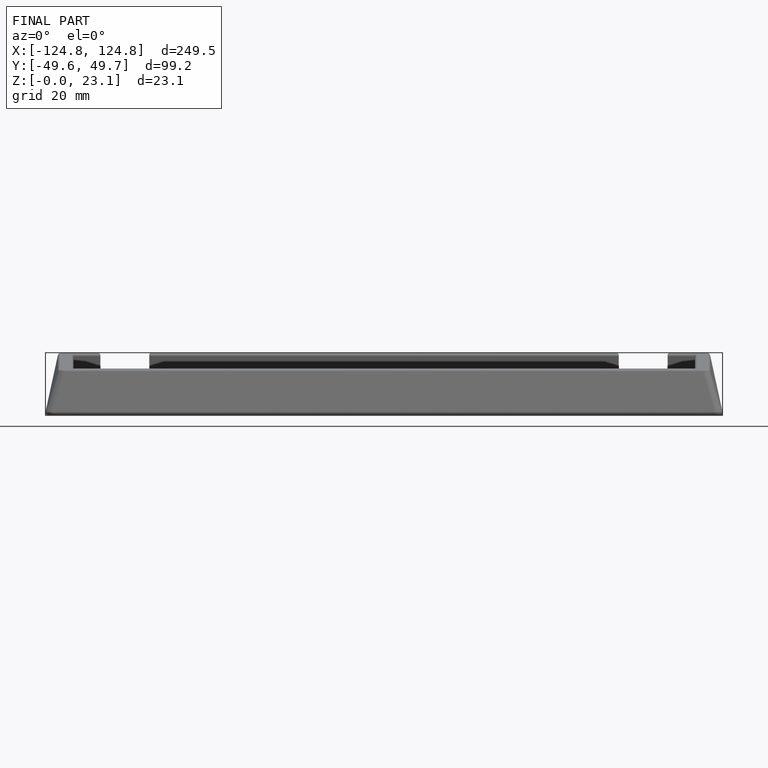
[diagram: finished part — front view with bounding-box wireframe]
